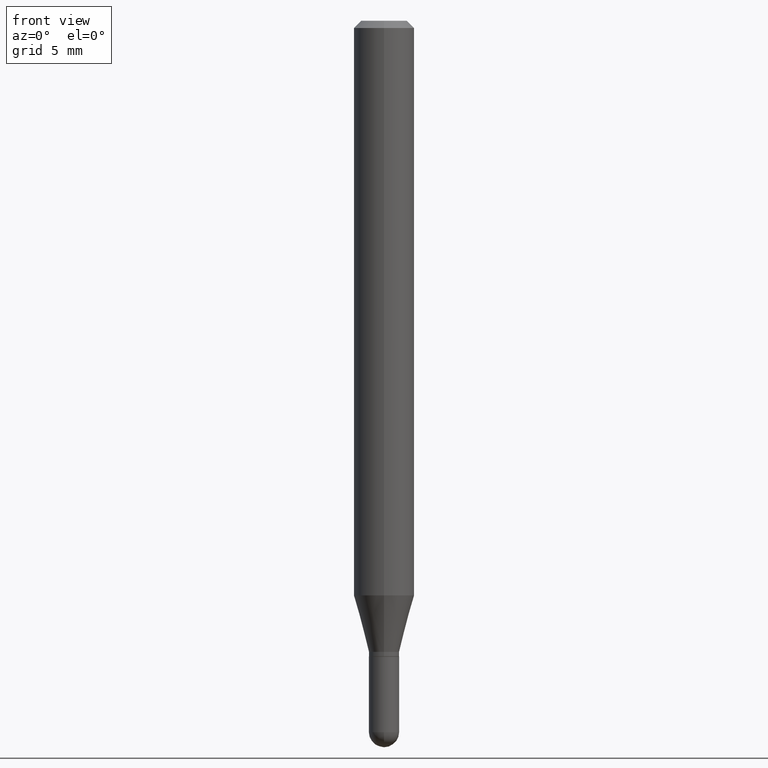
[diagram: clean part render]
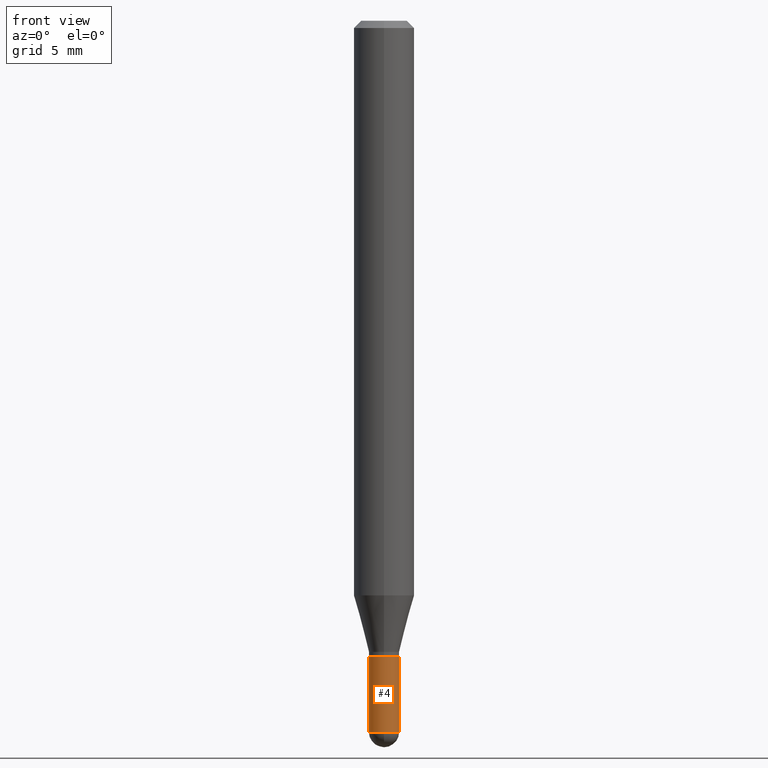
[diagram: same view with one face highlighted and labeled with its STEP entity id]
A machine part, front view. The second image highlights one B-rep face of the part: STEP entity #4.
In plain terms, the highlighted cylindrical surface (edge-blend (fillet) strip) has radius 0.7937 mm, axis along (-0, 0, 1).
Its self-contained STEP definition (entity closure, byte-faithful):
#4 = ADVANCED_FACE ( 'NONE', ( #50 ), #368, .T. ) ;
#14 = DIRECTION ( 'NONE',  ( -2.445468806185136877E-29, 3.491481338843145188E-15, 1.000000000000000000 ) ) ;
#30 = ORIENTED_EDGE ( 'NONE', *, *, #390, .T. ) ;
#32 = CARTESIAN_POINT ( 'NONE',  ( 3.591782309084418816E-29, -5.128113216425869865E-15, -1.468750000000000000 ) ) ;
#40 = LINE ( 'NONE', #472, #101 ) ;
#50 = FACE_OUTER_BOUND ( 'NONE', #255, .T. ) ;
#73 = ORIENTED_EDGE ( 'NONE', *, *, #190, .F. ) ;
#78 = AXIS2_PLACEMENT_3D ( 'NONE', #446, #82, #203 ) ;
#80 = CARTESIAN_POINT ( 'NONE',  ( -2.182175836776606071E-16, -0.03125000000000523193, -1.468750000000000000 ) ) ;
#82 = DIRECTION ( 'NONE',  ( -2.445468806185136597E-29, 3.491481338843145583E-15, 1.000000000000000000 ) ) ;
#101 = VECTOR ( 'NONE', #146, 39.37007874015748143 ) ;
#106 = VERTEX_POINT ( 'NONE', #453 ) ;
#121 = ORIENTED_EDGE ( 'NONE', *, *, #474, .T. ) ;
#130 = CARTESIAN_POINT ( 'NONE',  ( -0.03125000000000000000, 2.220446049250313081E-16, -1.537167215704658057E-30 ) ) ;
#131 = VERTEX_POINT ( 'NONE', #173 ) ;
#146 = DIRECTION ( 'NONE',  ( -2.445468806185136877E-29, 3.491481338843145188E-15, 1.000000000000000000 ) ) ;
#152 = VERTEX_POINT ( 'NONE', #80 ) ;
#153 = ORIENTED_EDGE ( 'NONE', *, *, #343, .F. ) ;
#162 = CARTESIAN_POINT ( 'NONE',  ( 0.03125000000000000694, -5.074431690841155672E-15, -1.468750000000000000 ) ) ;
#173 = CARTESIAN_POINT ( 'NONE',  ( 0.03125000000000000000, -4.802532581578746433E-15, -1.313000000000000167 ) ) ;
#177 = DIRECTION ( 'NONE',  ( 1.000000000000000000, -6.982962677686261189E-15, 0.000000000000000000 ) ) ;
#180 = CARTESIAN_POINT ( 'NONE',  ( 3.591782309084418816E-29, -5.128113216425869865E-15, -1.468750000000000000 ) ) ;
#186 = VECTOR ( 'NONE', #14, 39.37007874015748143 ) ;
#188 = DIRECTION ( 'NONE',  ( -2.445468806185136597E-29, 3.491481338843145583E-15, 1.000000000000000000 ) ) ;
#190 = EDGE_CURVE ( 'NONE', #317, #106, #207, .T. ) ;
#191 = ORIENTED_EDGE ( 'NONE', *, *, #476, .T. ) ;
#203 = DIRECTION ( 'NONE',  ( 1.000000000000000000, -6.982962677686266711E-15, 4.876176775795935793E-29 ) ) ;
#207 = LINE ( 'NONE', #130, #186 ) ;
#225 = DIRECTION ( 'NONE',  ( -2.445468806185136597E-29, 3.491481338843145583E-15, 1.000000000000000000 ) ) ;
#255 = EDGE_LOOP ( 'NONE', ( #73, #191, #30, #121, #153 ) ) ;
#264 = AXIS2_PLACEMENT_3D ( 'NONE', #266, #391, #426 ) ;
#266 = CARTESIAN_POINT ( 'NONE',  ( 3.210900542521084585E-29, -4.584314997901050598E-15, -1.313000000000000167 ) ) ;
#272 = DIRECTION ( 'NONE',  ( 1.000000000000000000, -6.982962677686261189E-15, 0.000000000000000000 ) ) ;
#303 = CIRCLE ( 'NONE', #264, 0.03125000000000000000 ) ;
#317 = VERTEX_POINT ( 'NONE', #406 ) ;
#338 = VERTEX_POINT ( 'NONE', #162 ) ;
#343 = EDGE_CURVE ( 'NONE', #106, #131, #303, .T. ) ;
#368 = CYLINDRICAL_SURFACE ( 'NONE', #78, 0.03125000000000000000 ) ;
#390 = EDGE_CURVE ( 'NONE', #152, #338, #448, .T. ) ;
#391 = DIRECTION ( 'NONE',  ( -2.445468806185136597E-29, 3.491481338843145583E-15, 1.000000000000000000 ) ) ;
#400 = CIRCLE ( 'NONE', #496, 0.03125000000000000694 ) ;
#406 = CARTESIAN_POINT ( 'NONE',  ( -0.03125000000000000694, -4.634169502238429318E-15, -1.468750000000000000 ) ) ;
#426 = DIRECTION ( 'NONE',  ( 1.000000000000000000, -6.982962677686262766E-15, 0.000000000000000000 ) ) ;
#446 = CARTESIAN_POINT ( 'NONE',  ( 0.000000000000000000, 0.000000000000000000, 0.000000000000000000 ) ) ;
#448 = CIRCLE ( 'NONE', #495, 0.03125000000000000694 ) ;
#453 = CARTESIAN_POINT ( 'NONE',  ( -0.03125000000000000000, -4.634169502238429318E-15, -1.313000000000000167 ) ) ;
#472 = CARTESIAN_POINT ( 'NONE',  ( 0.03125000000000000000, -2.182175836776958347E-16, 1.523805242436229935E-30 ) ) ;
#474 = EDGE_CURVE ( 'NONE', #338, #131, #40, .T. ) ;
#476 = EDGE_CURVE ( 'NONE', #317, #152, #400, .T. ) ;
#495 = AXIS2_PLACEMENT_3D ( 'NONE', #180, #225, #177 ) ;
#496 = AXIS2_PLACEMENT_3D ( 'NONE', #32, #188, #272 ) ;